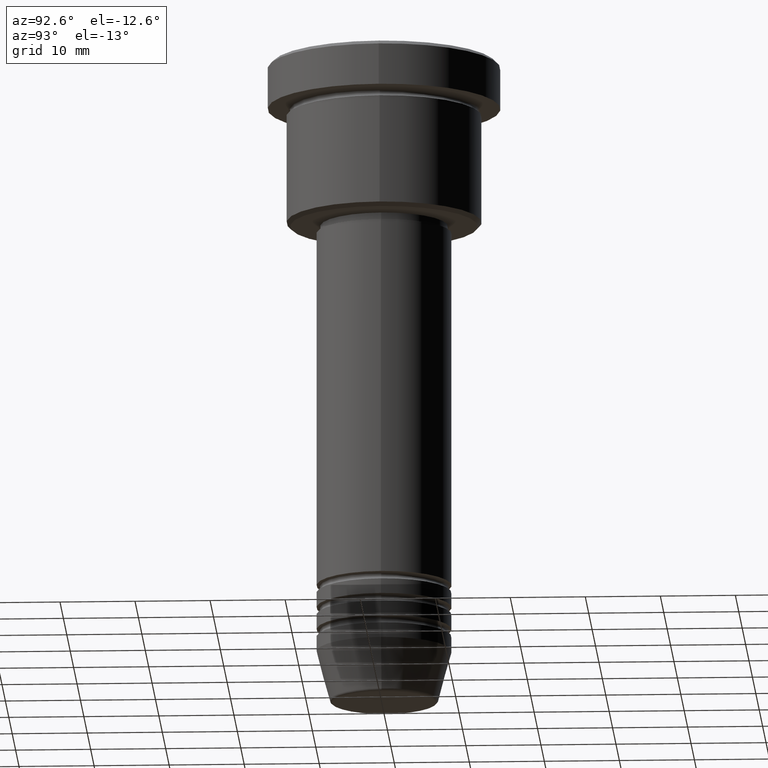
[diagram: clean part render]
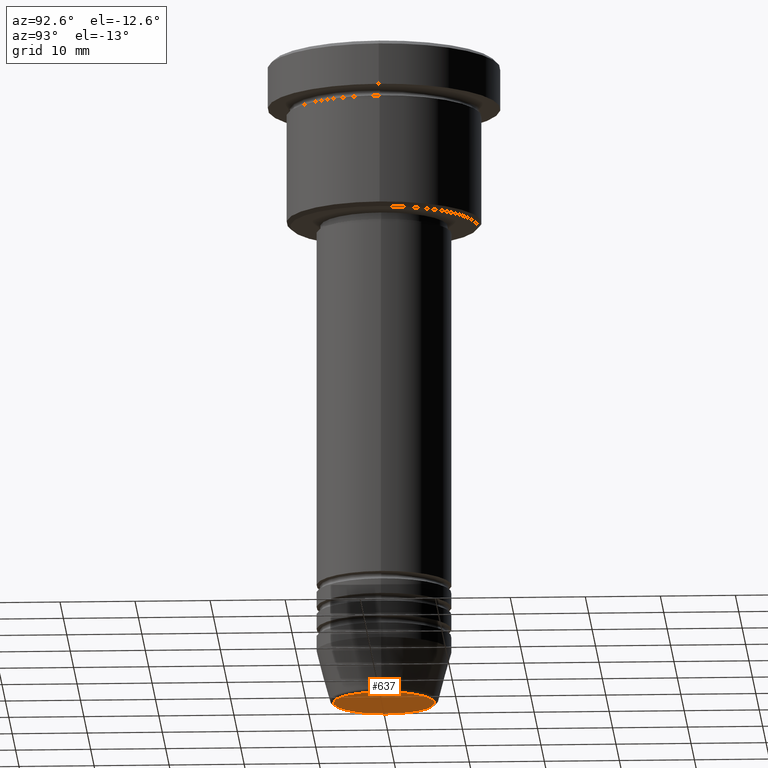
[diagram: same view with one face highlighted and labeled with its STEP entity id]
A machine part, auxiliary view. The second image highlights one B-rep face of the part: STEP entity #637.
In plain terms, the highlighted planar face has unit normal (0, -0, 1).
Its self-contained STEP definition (entity closure, byte-faithful):
#21 = VERTEX_POINT ( 'NONE', #266 ) ;
#31 = AXIS2_PLACEMENT_3D ( 'NONE', #600, #595, #853 ) ;
#74 = FACE_OUTER_BOUND ( 'NONE', #889, .T. ) ;
#92 = VERTEX_POINT ( 'NONE', #1126 ) ;
#152 = AXIS2_PLACEMENT_3D ( 'NONE', #1139, #164, #315 ) ;
#164 = DIRECTION ( 'NONE',  ( 0.000000000000000000, -0.000000000000000000, 1.000000000000000000 ) ) ;
#194 = EDGE_CURVE ( 'NONE', #21, #92, #1108, .T. ) ;
#266 = CARTESIAN_POINT ( 'NONE',  ( -6.740692158992653837, 8.550696569392682723E-16, -87.00000000000000000 ) ) ;
#315 = DIRECTION ( 'NONE',  ( 1.000000000000000000, 0.000000000000000000, 0.000000000000000000 ) ) ;
#460 = ORIENTED_EDGE ( 'NONE', *, *, #194, .T. ) ;
#595 = DIRECTION ( 'NONE',  ( 0.000000000000000000, 0.000000000000000000, -1.000000000000000000 ) ) ;
#600 = CARTESIAN_POINT ( 'NONE',  ( 0.000000000000000000, 0.000000000000000000, -87.00000000000000000 ) ) ;
#637 = ADVANCED_FACE ( 'NONE', ( #74 ), #784, .F. ) ;
#784 = PLANE ( 'NONE',  #152 ) ;
#786 = CARTESIAN_POINT ( 'NONE',  ( 0.000000000000000000, 0.000000000000000000, -87.00000000000000000 ) ) ;
#853 = DIRECTION ( 'NONE',  ( 1.000000000000000000, 0.000000000000000000, 0.000000000000000000 ) ) ;
#889 = EDGE_LOOP ( 'NONE', ( #1129, #460 ) ) ;
#923 = AXIS2_PLACEMENT_3D ( 'NONE', #786, #1142, #964 ) ;
#964 = DIRECTION ( 'NONE',  ( 1.000000000000000000, 0.000000000000000000, 0.000000000000000000 ) ) ;
#1062 = CIRCLE ( 'NONE', #31, 6.740692158992653837 ) ;
#1082 = EDGE_CURVE ( 'NONE', #92, #21, #1062, .T. ) ;
#1108 = CIRCLE ( 'NONE', #923, 6.740692158992653837 ) ;
#1126 = CARTESIAN_POINT ( 'NONE',  ( 6.740692158992653837, 0.000000000000000000, -87.00000000000000000 ) ) ;
#1129 = ORIENTED_EDGE ( 'NONE', *, *, #1082, .T. ) ;
#1139 = CARTESIAN_POINT ( 'NONE',  ( 0.000000000000000000, 0.000000000000000000, -87.00000000000000000 ) ) ;
#1142 = DIRECTION ( 'NONE',  ( 0.000000000000000000, 0.000000000000000000, -1.000000000000000000 ) ) ;